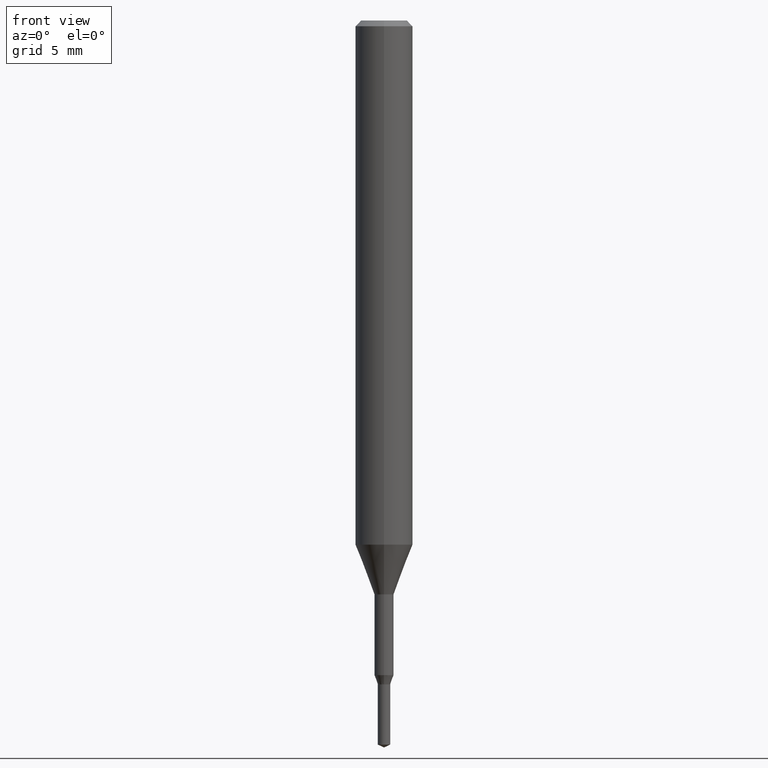
[diagram: clean part render]
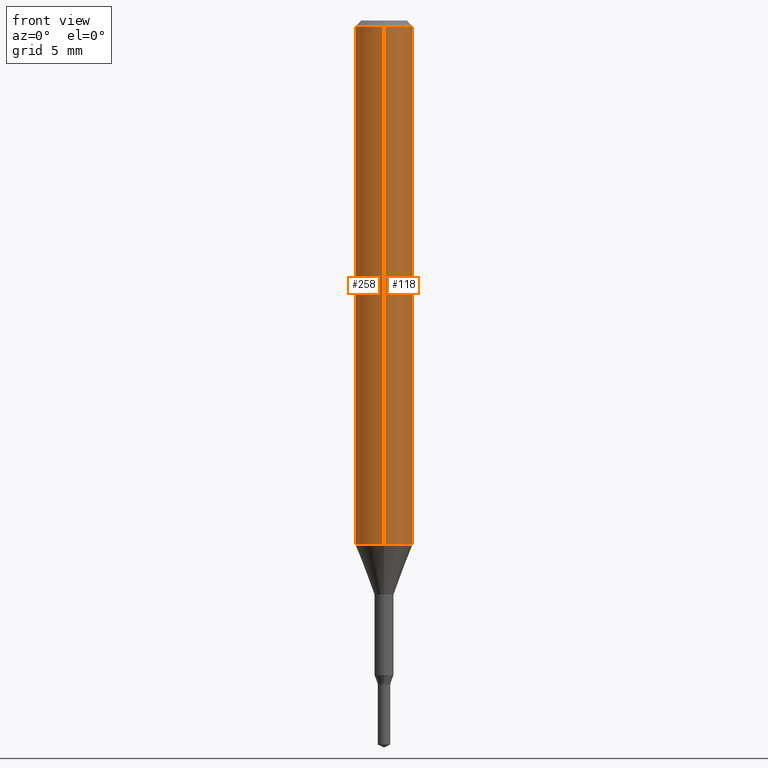
[diagram: same view with one multi-face feature highlighted, each face labeled with its STEP entity id]
A machine part, front view. The highlighted faces form ONE feature: a constant-radius fillet chain: 2 tangent blend faces with common blend radius 1.5 mm. The faces share edges in the B-rep.
Their STEP definitions:
[1] entity #118 (Cylinder):
#116=EDGE_CURVE('',#140,#242,#293,.T.);
#118=ADVANCED_FACE('',(#295),#296,.T.);
#130=VERTEX_POINT('',#311);
#140=VERTEX_POINT('',#321);
#148=EDGE_CURVE('',#130,#250,#329,.T.);
#156=EDGE_CURVE('',#140,#250,#337,.T.);
#218=EDGE_CURVE('',#242,#130,#409,.T.);
#242=VERTEX_POINT('',#436);
#250=VERTEX_POINT('',#446);
#293=LINE('',#485,#486);
#295=FACE_OUTER_BOUND('',#488,.T.);
#296=CYLINDRICAL_SURFACE('',#489,1.5);
#311=CARTESIAN_POINT('',(1.83690953073357E-016,-1.5,-27.395));
#321=CARTESIAN_POINT('',(0.0,1.5,-0.300000000000001));
#329=LINE('',#530,#531);
#337=CIRCLE('',#541,1.5);
#409=CIRCLE('',#634,1.5);
#436=CARTESIAN_POINT('',(0.0,1.5,-27.395));
#446=CARTESIAN_POINT('',(1.83690953073357E-016,-1.5,-0.300000000000001));
#485=CARTESIAN_POINT('',(-1.83690953073357E-016,1.5,-13.8475));
#486=VECTOR('',#711,1.0);
#488=EDGE_LOOP('',(#713,#714,#715,#716));
#489=AXIS2_PLACEMENT_3D('',#717,#718,#719);
#530=CARTESIAN_POINT('',(1.83690953073357E-016,-1.5,-13.8475));
#531=VECTOR('',#751,1.0);
#541=AXIS2_PLACEMENT_3D('',#755,#756,#757);
#634=AXIS2_PLACEMENT_3D('',#869,#870,#871);
#711=DIRECTION('',(0.0,0.0,-1.0));
#713=ORIENTED_EDGE('',*,*,#116,.F.);
#714=ORIENTED_EDGE('',*,*,#156,.T.);
#715=ORIENTED_EDGE('',*,*,#148,.F.);
#716=ORIENTED_EDGE('',*,*,#218,.F.);
#717=CARTESIAN_POINT('',(0.0,0.0,-13.8475));
#718=DIRECTION('',(-0.0,-0.0,1.0));
#719=DIRECTION('',(0.0,1.0,0.0));
#751=DIRECTION('',(-0.0,-0.0,1.0));
#755=CARTESIAN_POINT('',(0.0,0.0,-0.300000000000001));
#756=DIRECTION('',(0.0,0.0,-1.0));
#757=DIRECTION('',(0.0,1.0,0.0));
#869=CARTESIAN_POINT('',(0.0,0.0,-27.395));
#870=DIRECTION('',(0.0,0.0,-1.0));
#871=DIRECTION('',(0.0,1.0,0.0));
[2] entity #258 (Cylinder):
#116=EDGE_CURVE('',#140,#242,#293,.T.);
#126=EDGE_CURVE('',#250,#140,#306,.T.);
#130=VERTEX_POINT('',#311);
#132=EDGE_CURVE('',#130,#242,#313,.T.);
#140=VERTEX_POINT('',#321);
#148=EDGE_CURVE('',#130,#250,#329,.T.);
#242=VERTEX_POINT('',#436);
#250=VERTEX_POINT('',#446);
#258=ADVANCED_FACE('',(#454),#455,.T.);
#293=LINE('',#485,#486);
#306=CIRCLE('',#501,1.5);
#311=CARTESIAN_POINT('',(1.83690953073357E-016,-1.5,-27.395));
#313=CIRCLE('',#509,1.5);
#321=CARTESIAN_POINT('',(0.0,1.5,-0.300000000000001));
#329=LINE('',#530,#531);
#436=CARTESIAN_POINT('',(0.0,1.5,-27.395));
#446=CARTESIAN_POINT('',(1.83690953073357E-016,-1.5,-0.300000000000001));
#454=FACE_OUTER_BOUND('',#693,.T.);
#455=CYLINDRICAL_SURFACE('',#694,1.5);
#485=CARTESIAN_POINT('',(-1.83690953073357E-016,1.5,-13.8475));
#486=VECTOR('',#711,1.0);
#501=AXIS2_PLACEMENT_3D('',#731,#732,#733);
#509=AXIS2_PLACEMENT_3D('',#742,#743,#744);
#530=CARTESIAN_POINT('',(1.83690953073357E-016,-1.5,-13.8475));
#531=VECTOR('',#751,1.0);
#693=EDGE_LOOP('',(#920,#921,#922,#923));
#694=AXIS2_PLACEMENT_3D('',#924,#925,#926);
#711=DIRECTION('',(0.0,0.0,-1.0));
#731=CARTESIAN_POINT('',(0.0,0.0,-0.300000000000001));
#732=DIRECTION('',(0.0,0.0,-1.0));
#733=DIRECTION('',(0.0,1.0,0.0));
#742=CARTESIAN_POINT('',(0.0,0.0,-27.395));
#743=DIRECTION('',(0.0,0.0,-1.0));
#744=DIRECTION('',(0.0,1.0,0.0));
#751=DIRECTION('',(-0.0,-0.0,1.0));
#920=ORIENTED_EDGE('',*,*,#116,.T.);
#921=ORIENTED_EDGE('',*,*,#132,.F.);
#922=ORIENTED_EDGE('',*,*,#148,.T.);
#923=ORIENTED_EDGE('',*,*,#126,.T.);
#924=CARTESIAN_POINT('',(0.0,0.0,-13.8475));
#925=DIRECTION('',(-0.0,-0.0,1.0));
#926=DIRECTION('',(0.0,1.0,0.0));